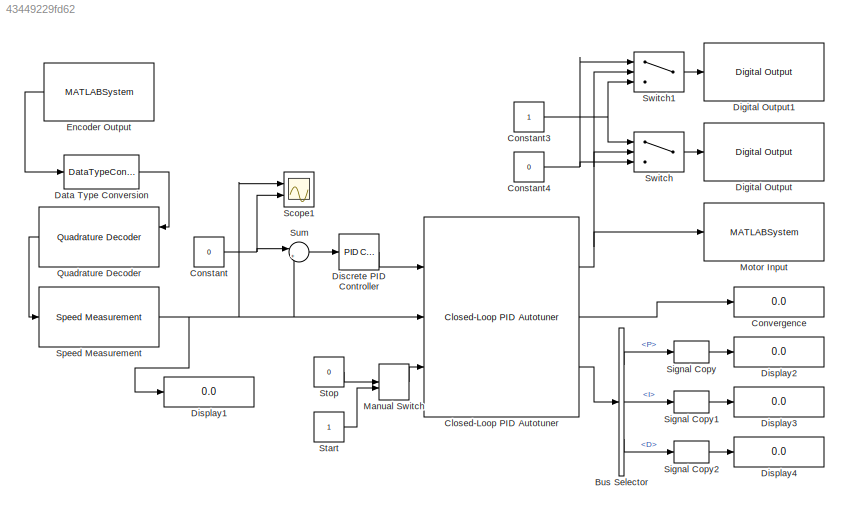
MODEL slx_43449229fd62
KIND model
CONFIG AbsTol = auto
CONFIG EnableMultiTasking = on
CONFIG FixedStep = auto
CONFIG MaxStep = auto
CONFIG MinStep = auto
CONFIG RelTol = 1e-3
CONFIG SampleTimeConstraint = Unconstrained
CONFIG Solver = ode45
CONFIG SolverName = ode45
CONFIG StartTime = 0.0
CONFIG StopTime = 10.0
BLOCK [BusSelector] Bus Selector
  OutputSignals = P,I,D
  Ports = [1, 3]
BLOCK [Reference] Closed-Loop PID Autotuner  REF=slctrlblks/Closed-Loop PID Autotuner
  Ports = [3, 3]
  SourceBlock = slctrlblks/Closed-Loop PID Autotuner
  SourceProductBaseCode = SD
  SourceType = ClosedLoopOnlinePIDTuner
BLOCK [Constant] Constant
  Value = 0
BLOCK [Constant] Constant3
BLOCK [Constant] Constant4
  Value = 0
BLOCK [Display] Convergence
  Decimation = 1
  Ports = [1]
BLOCK [DataTypeConversion] Data Type Conversion
  RndMeth = Floor
  SaturateOnIntegerOverflow = off
BLOCK [Reference] Digital Output  REF=arduinolib/Digital Output
  Ports = [1]
  SourceBlock = arduinolib/Digital Output
  SourceProductBaseCode = ARDUINO
  SourceType = Arduino Digital Output
BLOCK [Reference] Digital Output1  REF=arduinolib/Digital Output
  Ports = [1]
  SourceBlock = arduinolib/Digital Output
  SourceProductBaseCode = ARDUINO
  SourceType = Arduino Digital Output
BLOCK [Reference] Discrete PID Controller  REF=simulink/Continuous/PID Controller
  Ports = [1, 1]
  SourceBlock = simulink/Continuous/PID Controller
  SourceProductBaseCode = SL
  SourceType = PID 1dof
BLOCK [Display] Display1
  Decimation = 1
  Ports = [1]
BLOCK [Display] Display2
  Decimation = 1
  Ports = [1]
BLOCK [Display] Display3
  Decimation = 1
  Ports = [1]
BLOCK [Display] Display4
  Decimation = 1
  Ports = [1]
BLOCK [MATLABSystem] Encoder Output
  Encoder = 0
  MaskDisplay = disp('Encoder');\nport_label('output',1,'y');
  MaskType = Encoder_arduino
  PinA = 2
  PinB = 3
  Ports = [0, 1]
  SampleTime = 0.01
  System = Encoder_arduino
BLOCK [ManualSwitch] Manual Switch
BLOCK [MATLABSystem] Motor Input
  MaskDisplay = disp('Analog Output');\nport_label('input',1,'u');
  MaskType = AnalogOutput_arduino
  Pin = 6
  Ports = [1]
  System = AnalogOutput_arduino
BLOCK [Reference] Quadrature Decoder  REF=mcbpositiondecoderlib/Quadrature Decoder
  Ports = [2, 1]
  SourceBlock = mcbpositiondecoderlib/Quadrature Decoder
  SourceProductBaseCode = MT
  SourceType = Quadrature Decoder
BLOCK [Scope] Scope1
  Floating = off
  NumInputPorts = 2
  Ports = [2]
  ScopeSpecificationString = Simulink.scopes.TimeScopeBlockCfg('CurrentConfiguration', extmgr.ConfigurationSet(extmgr.Configuration('Core','General UI',true),extmgr.Configuration('Core','Source UI',true),extmgr.Configuration('Sources','WiredSimulink',true,'SampleTime','0.01','DataLoggingVariableName','ScopeData1'),extmgr.Configuration('Visuals','Time Domain',true,'SerializedDisplays',{struct('MinYLimReal','-484.26563','MaxYLi...<+1495ch>
BLOCK [SignalConversion] Signal Copy
  OverrideOpt = off
BLOCK [SignalConversion] Signal Copy1
  OverrideOpt = off
BLOCK [SignalConversion] Signal Copy2
  OverrideOpt = off
BLOCK [Reference] Speed Measurement  REF=mcbpositiondecoderlib/Speed Measurement
  Ports = [1, 1]
  SourceBlock = mcbpositiondecoderlib/Speed Measurement
  SourceProductBaseCode = MT
  SourceType = Speed Measurement
BLOCK [Constant] Start
BLOCK [Constant] Stop
  Value = 0
BLOCK [Sum] Sum
  Inputs = |+-
  Ports = [2, 1]
BLOCK [Switch] Switch
  Criteria = u2 > Threshold
  InputSameDT = off
  SaturateOnIntegerOverflow = off
BLOCK [Switch] Switch1
  Criteria = u2 > Threshold
  InputSameDT = off
  SaturateOnIntegerOverflow = off
LINE Bus Selector:1 -> Signal Copy:1
LINE Bus Selector:2 -> Signal Copy1:1
LINE Bus Selector:3 -> Signal Copy2:1
NET Closed-Loop PID Autotuner:1 -> Motor Input:1, Switch1:2, Switch:2
LINE Closed-Loop PID Autotuner:2 -> Convergence:1
LINE Closed-Loop PID Autotuner:3 -> Bus Selector:1
NET Constant3:1 -> Switch1:3, Switch:1
NET Constant4:1 -> Switch1:1, Switch:3
NET Constant:1 -> Scope1:2, Sum:1
LINE Data Type Conversion:1 -> Quadrature Decoder:1
LINE Discrete PID Controller:1 -> Closed-Loop PID Autotuner:1
LINE Encoder Output:1 -> Data Type Conversion:1
LINE Manual Switch:1 -> Closed-Loop PID Autotuner:3
LINE Quadrature Decoder:1 -> Speed Measurement:1
LINE Signal Copy1:1 -> Display3:1
LINE Signal Copy2:1 -> Display4:1
LINE Signal Copy:1 -> Display2:1
NET Speed Measurement:1 -> Closed-Loop PID Autotuner:2, Display1:1, Scope1:1, Sum:2
LINE Start:1 -> Manual Switch:2
LINE Stop:1 -> Manual Switch:1
LINE Sum:1 -> Discrete PID Controller:1
LINE Switch1:1 -> Digital Output1:1
LINE Switch:1 -> Digital Output:1
note: NET lines group one-source signal fan-out (src -> all destinations, sorted); 1:1 wires keep LINE
